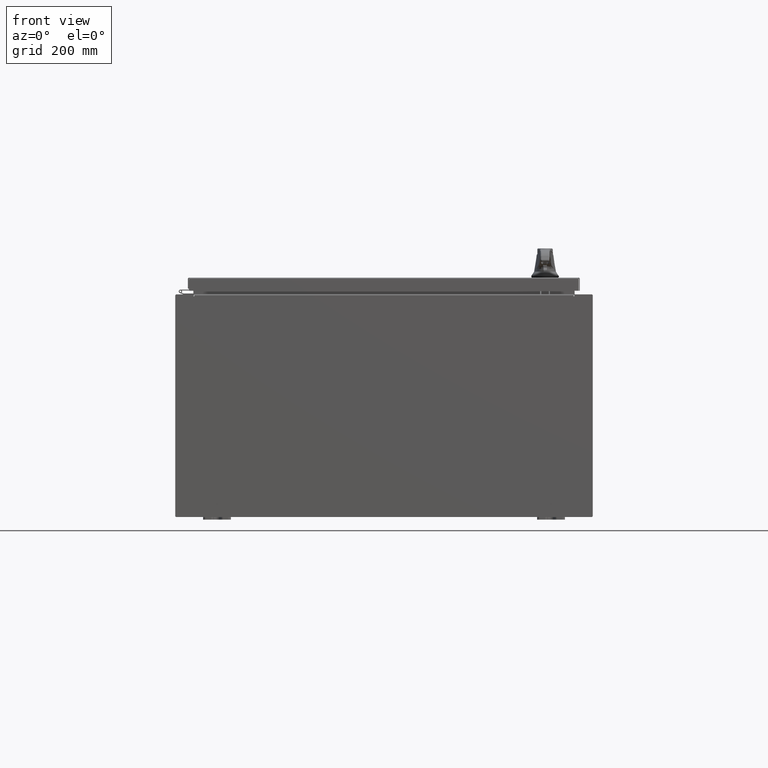
[diagram: clean part render]
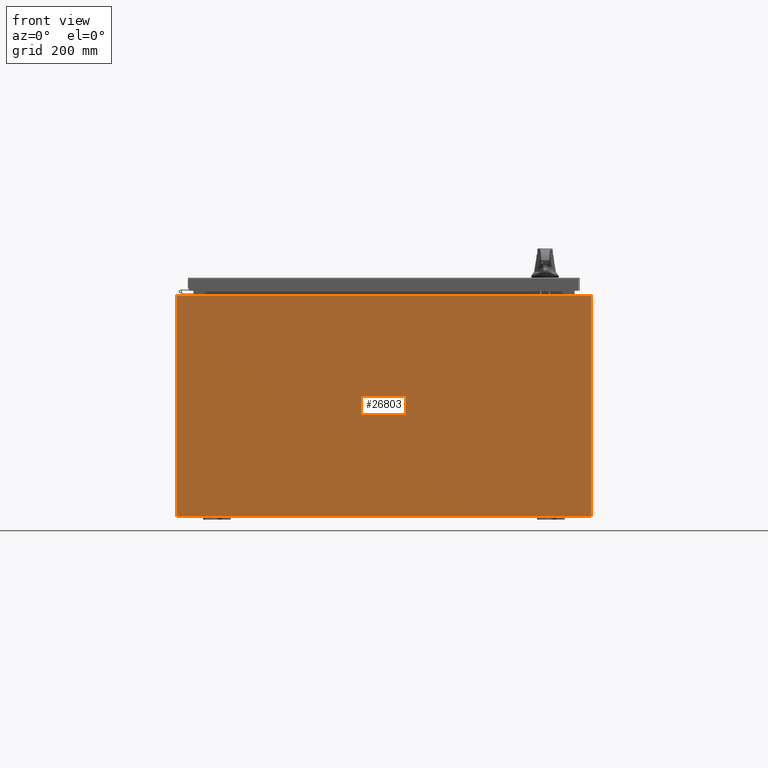
[diagram: same view with one face highlighted and labeled with its STEP entity id]
A machine part, front view. The second image highlights one B-rep face of the part: STEP entity #26803.
In plain terms, the highlighted planar face has unit normal (-0, 1, -0).
Its self-contained STEP definition (entity closure, byte-faithful):
#5047 = DIRECTION ( 'NONE',  ( -1.000000000000000000, -0.0000000000000000000, -0.0000000000000000000 ) ) ;
#6928 = ORIENTED_EDGE ( 'NONE', *, *, #32151, .T. ) ;
#9162 = CARTESIAN_POINT ( 'NONE',  ( -13.63719999999999600, -0.0000000000000000000, 7.874949999999999200 ) ) ;
#10093 = EDGE_CURVE ( 'NONE', #87727, #94838, #115984, .T. ) ;
#11475 = CARTESIAN_POINT ( 'NONE',  ( 13.63720000000000400, 0.0000000000000000000, 7.874949999999999200 ) ) ;
#11738 = CIRCLE ( 'NONE', #67115, 0.01867499999999949400 ) ;
#11764 = CARTESIAN_POINT ( 'NONE',  ( -14.92529999999999800, 0.0000000000000000000, 7.925300000000000000 ) ) ;
#15759 = ORIENTED_EDGE ( 'NONE', *, *, #90409, .F. ) ;
#16377 = CARTESIAN_POINT ( 'NONE',  ( 0.0000000000000000000, 0.0000000000000000000, 0.0000000000000000000 ) ) ;
#17061 = VECTOR ( 'NONE', #81762, 39.37007874015748100 ) ;
#18026 = VECTOR ( 'NONE', #105211, 39.37007874015748100 ) ;
#19724 = CARTESIAN_POINT ( 'NONE',  ( 14.92530000000000200, 0.0000000000000000000, 7.925299999999997300 ) ) ;
#20867 = VECTOR ( 'NONE', #61297, 39.37007874015748100 ) ;
#23145 = CARTESIAN_POINT ( 'NONE',  ( -13.65587499999999600, 0.0000000000000000000, 7.874949999999999200 ) ) ;
#26292 = DIRECTION ( 'NONE',  ( 0.0000000000000000000, -0.0000000000000000000, -1.000000000000000000 ) ) ;
#26318 = CARTESIAN_POINT ( 'NONE',  ( -13.63719999999999600, -0.0000000000000000000, 0.0000000000000000000 ) ) ;
#26719 = CARTESIAN_POINT ( 'NONE',  ( 13.63720000000000400, 0.0000000000000000000, 7.912299999999999200 ) ) ;
#26803 = ADVANCED_FACE ( 'NONE', ( #44980 ), #73545, .F. ) ;
#28853 = EDGE_CURVE ( 'NONE', #56094, #38995, #88958, .T. ) ;
#28947 = ORIENTED_EDGE ( 'NONE', *, *, #50662, .F. ) ;
#29151 = CARTESIAN_POINT ( 'NONE',  ( -13.63719999999999600, 3.756290991288361700E-016, 7.912300000000006300 ) ) ;
#30251 = ORIENTED_EDGE ( 'NONE', *, *, #104376, .T. ) ;
#31181 = DIRECTION ( 'NONE',  ( -4.340572780400193600E-014, 0.0000000000000000000, -1.000000000000000000 ) ) ;
#31717 = VERTEX_POINT ( 'NONE', #91262 ) ;
#31855 = DIRECTION ( 'NONE',  ( 0.0000000000000000000, 0.0000000000000000000, 1.000000000000000000 ) ) ;
#32151 = EDGE_CURVE ( 'NONE', #87727, #82598, #57312, .T. ) ;
#32485 = CARTESIAN_POINT ( 'NONE',  ( -13.67454999999999500, 0.0000000000000000000, 7.925300000000000000 ) ) ;
#32659 = DIRECTION ( 'NONE',  ( 0.0000000000000000000, 0.0000000000000000000, -1.000000000000000000 ) ) ;
#33051 = ORIENTED_EDGE ( 'NONE', *, *, #105466, .T. ) ;
#33523 = EDGE_CURVE ( 'NONE', #55255, #49875, #74928, .T. ) ;
#36904 = VERTEX_POINT ( 'NONE', #49095 ) ;
#38995 = VERTEX_POINT ( 'NONE', #9162 ) ;
#39799 = VERTEX_POINT ( 'NONE', #11475 ) ;
#40139 = CARTESIAN_POINT ( 'NONE',  ( 13.65587500000000200, 0.0000000000000000000, 7.874949999999999200 ) ) ;
#40167 = VECTOR ( 'NONE', #31181, 39.37007874015748100 ) ;
#40689 = CARTESIAN_POINT ( 'NONE',  ( 13.67454999999966100, -0.0000000000000000000, -5.935537951421999000E-013 ) ) ;
#44046 = EDGE_CURVE ( 'NONE', #82598, #31717, #71369, .T. ) ;
#44833 = EDGE_CURVE ( 'NONE', #66214, #49875, #99526, .T. ) ;
#44980 = FACE_OUTER_BOUND ( 'NONE', #100852, .T. ) ;
#49095 = CARTESIAN_POINT ( 'NONE',  ( -14.92529999999999800, 0.0000000000000000000, -7.925300000000000000 ) ) ;
#49674 = DIRECTION ( 'NONE',  ( 0.0000000000000000000, 0.0000000000000000000, -1.000000000000000000 ) ) ;
#49875 = VERTEX_POINT ( 'NONE', #32485 ) ;
#50662 = EDGE_CURVE ( 'NONE', #39799, #59555, #116675, .T. ) ;
#51274 = CARTESIAN_POINT ( 'NONE',  ( 13.63720000000000400, 0.0000000000000000000, 0.0000000000000000000 ) ) ;
#52452 = LINE ( 'NONE', #11764, #71755 ) ;
#55255 = VERTEX_POINT ( 'NONE', #63723 ) ;
#56094 = VERTEX_POINT ( 'NONE', #29151 ) ;
#56492 = EDGE_CURVE ( 'NONE', #31717, #36904, #68817, .T. ) ;
#57312 = LINE ( 'NONE', #69627, #104921 ) ;
#58517 = ORIENTED_EDGE ( 'NONE', *, *, #44046, .T. ) ;
#59555 = VERTEX_POINT ( 'NONE', #26719 ) ;
#61297 = DIRECTION ( 'NONE',  ( 1.000000000000000000, 0.0000000000000000000, -7.321388497823864400E-017 ) ) ;
#63723 = CARTESIAN_POINT ( 'NONE',  ( -13.67454999999999500, 0.0000000000000000000, 7.874949999999999200 ) ) ;
#66101 = VECTOR ( 'NONE', #98651, 39.37007874015748100 ) ;
#66214 = VERTEX_POINT ( 'NONE', #93524 ) ;
#66356 = ORIENTED_EDGE ( 'NONE', *, *, #56492, .T. ) ;
#66791 = ORIENTED_EDGE ( 'NONE', *, *, #80441, .F. ) ;
#67115 = AXIS2_PLACEMENT_3D ( 'NONE', #23145, #89473, #32659 ) ;
#68817 = LINE ( 'NONE', #109182, #94124 ) ;
#69627 = CARTESIAN_POINT ( 'NONE',  ( -14.92529999999999800, 0.0000000000000000000, 7.925300000000000000 ) ) ;
#71369 = LINE ( 'NONE', #19724, #18026 ) ;
#71755 = VECTOR ( 'NONE', #116331, 39.37007874015748100 ) ;
#71924 = VECTOR ( 'NONE', #31855, 39.37007874015748100 ) ;
#73398 = LINE ( 'NONE', #91321, #17061 ) ;
#73545 = PLANE ( 'NONE',  #111440 ) ;
#73856 = AXIS2_PLACEMENT_3D ( 'NONE', #40139, #106613, #49674 ) ;
#74928 = LINE ( 'NONE', #98236, #71924 ) ;
#80441 = EDGE_CURVE ( 'NONE', #94838, #39799, #83173, .T. ) ;
#81762 = DIRECTION ( 'NONE',  ( 1.000000000000000000, 0.0000000000000000000, 0.0000000000000000000 ) ) ;
#82598 = VERTEX_POINT ( 'NONE', #90613 ) ;
#83093 = DIRECTION ( 'NONE',  ( 0.0000000000000000000, -1.000000000000000000, 0.0000000000000000000 ) ) ;
#83173 = CIRCLE ( 'NONE', #73856, 0.01867499999999949400 ) ;
#87727 = VERTEX_POINT ( 'NONE', #97245 ) ;
#88958 = LINE ( 'NONE', #26318, #111313 ) ;
#89473 = DIRECTION ( 'NONE',  ( -0.0000000000000000000, 1.000000000000000000, -0.0000000000000000000 ) ) ;
#90313 = CARTESIAN_POINT ( 'NONE',  ( 13.67455000000000200, 0.0000000000000000000, 7.874949999999999200 ) ) ;
#90409 = EDGE_CURVE ( 'NONE', #38995, #55255, #11738, .T. ) ;
#90613 = CARTESIAN_POINT ( 'NONE',  ( 14.92530000000000200, 0.0000000000000000000, 7.925299999999997300 ) ) ;
#90802 = ORIENTED_EDGE ( 'NONE', *, *, #10093, .F. ) ;
#91262 = CARTESIAN_POINT ( 'NONE',  ( 14.92530000000000200, 0.0000000000000000000, -7.925300000000000000 ) ) ;
#91321 = CARTESIAN_POINT ( 'NONE',  ( -13.63719999999999800, 3.756290991288361700E-016, 7.912300000000006300 ) ) ;
#92178 = ORIENTED_EDGE ( 'NONE', *, *, #28853, .F. ) ;
#92692 = DIRECTION ( 'NONE',  ( 0.0000000000000000000, 0.0000000000000000000, -1.000000000000000000 ) ) ;
#93524 = CARTESIAN_POINT ( 'NONE',  ( -14.92529999999999800, 0.0000000000000000000, 7.925300000000000000 ) ) ;
#94124 = VECTOR ( 'NONE', #5047, 39.37007874015748100 ) ;
#94838 = VERTEX_POINT ( 'NONE', #90313 ) ;
#97245 = CARTESIAN_POINT ( 'NONE',  ( 13.67455000000000400, 0.0000000000000000000, 7.925299999999997300 ) ) ;
#98236 = CARTESIAN_POINT ( 'NONE',  ( -13.67454999999999500, -0.0000000000000000000, 0.0000000000000000000 ) ) ;
#98651 = DIRECTION ( 'NONE',  ( 0.0000000000000000000, 0.0000000000000000000, 1.000000000000000000 ) ) ;
#99526 = LINE ( 'NONE', #118269, #20867 ) ;
#100852 = EDGE_LOOP ( 'NONE', ( #121912, #15759, #92178, #30251, #28947, #66791, #90802, #6928, #58517, #66356, #33051, #106045 ) ) ;
#104376 = EDGE_CURVE ( 'NONE', #56094, #59555, #73398, .T. ) ;
#104921 = VECTOR ( 'NONE', #117045, 39.37007874015748100 ) ;
#105211 = DIRECTION ( 'NONE',  ( 0.0000000000000000000, 0.0000000000000000000, -1.000000000000000000 ) ) ;
#105466 = EDGE_CURVE ( 'NONE', #36904, #66214, #52452, .T. ) ;
#106045 = ORIENTED_EDGE ( 'NONE', *, *, #44833, .T. ) ;
#106613 = DIRECTION ( 'NONE',  ( -0.0000000000000000000, 1.000000000000000000, -0.0000000000000000000 ) ) ;
#109182 = CARTESIAN_POINT ( 'NONE',  ( -14.92529999999999800, 0.0000000000000000000, -7.925300000000000000 ) ) ;
#111313 = VECTOR ( 'NONE', #92692, 39.37007874015748100 ) ;
#111440 = AXIS2_PLACEMENT_3D ( 'NONE', #16377, #83093, #26292 ) ;
#115984 = LINE ( 'NONE', #40689, #40167 ) ;
#116331 = DIRECTION ( 'NONE',  ( -0.0000000000000000000, -0.0000000000000000000, 1.000000000000000000 ) ) ;
#116675 = LINE ( 'NONE', #51274, #66101 ) ;
#117045 = DIRECTION ( 'NONE',  ( 1.000000000000000000, 0.0000000000000000000, -7.321388497823864400E-017 ) ) ;
#118269 = CARTESIAN_POINT ( 'NONE',  ( -14.92529999999999800, 0.0000000000000000000, 7.925300000000000000 ) ) ;
#121912 = ORIENTED_EDGE ( 'NONE', *, *, #33523, .F. ) ;